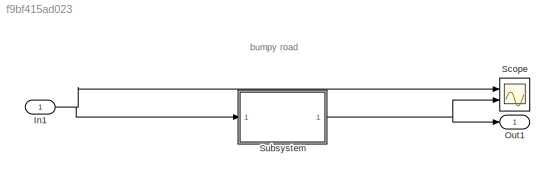
MODEL slx_f9bf415ad023
KIND model
CONFIG AbsTol = auto
CONFIG EnableMultiTasking = off
CONFIG FixedStep = auto
CONFIG MaxStep = auto
CONFIG MinStep = auto
CONFIG RelTol = 1e-3
CONFIG SampleTimeConstraint = Unconstrained
CONFIG SolverName = VariableStepAuto
CONFIG StartTime = 0.0
CONFIG StopTime = 100
WORKSPACE source: mxarray member
WORKSPACE Sig: Simulink.Signal (value not decoded)
WORKSPACE Sig1: Simulink.Signal (value not decoded)
WORKSPACE Ts = 0.01
WORKSPACE b = 100
WORKSPACE k1 = 2000
WORKSPACE k2 = 2000
WORKSPACE m1 = 200
WORKSPACE m2 = 5
WORKSPACE out: Simulink.SimulationOutput (value not decoded)
WORKSPACE stin = [0 0 0 0 0 0 0 0 0 0 0 0 ... (1001 elements, 1001x1)]
WORKSPACE t = [0 0.01 0.02 0.03 0.04 0.05 0.06 0.07 0.08 0.09 0.1 0.11 ... (1001 elements, 1001x1)]
WORKSPACE tout = [0 2 4 4.27243359785 4.5448671957 4.74548384965 4.9461005036 4.97718698558 4.98549942554 4.9938118655 4.9974088391 4.99890512267 ... (559 elements, 559x1)]
WORKSPACE yout = [0 0 0 0 0 0 0 0 0 0 0 0 ... (559 elements, 559x1)]
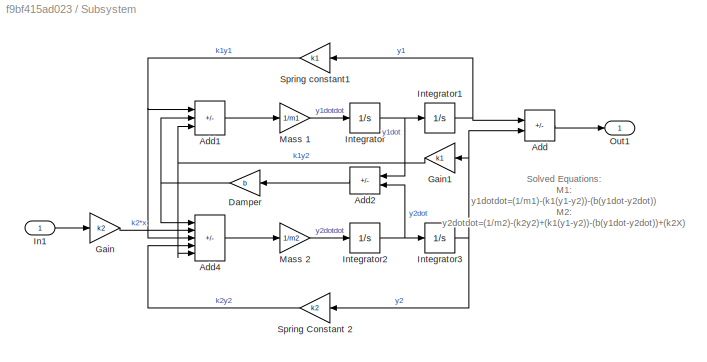
BLOCK [SubSystem]  Subsystem
  Ports = [1, 1]
  RequestExecContextInheritance = off
BLOCK [Gain]  Subsystem/ Damper
  Gain = b
BLOCK [Sum]  Subsystem/Add
  IconShape = rectangular
  Inputs = +-
  Ports = [2, 1]
BLOCK [Sum]  Subsystem/Add1
  IconShape = rectangular
  Inputs = --+
  Ports = [3, 1]
BLOCK [Sum]  Subsystem/Add2
  IconShape = rectangular
  Inputs = +-
  Ports = [2, 1]
BLOCK [Sum]  Subsystem/Add4
  IconShape = rectangular
  Inputs = +++--
  Ports = [5, 1]
BLOCK [Gain]  Subsystem/Gain
  Gain = k2
BLOCK [Gain]  Subsystem/Gain1
  Gain = k1
BLOCK [Inport]  Subsystem/In1
BLOCK [Integrator]  Subsystem/Integrator
  Ports = [1, 1]
BLOCK [Integrator]  Subsystem/Integrator1
  Ports = [1, 1]
BLOCK [Integrator]  Subsystem/Integrator2
  Ports = [1, 1]
BLOCK [Integrator]  Subsystem/Integrator3
  Ports = [1, 1]
BLOCK [Gain]  Subsystem/Mass 1
  Gain = 1/m1
BLOCK [Gain]  Subsystem/Mass 2
  Gain = 1/m2
BLOCK [Outport]  Subsystem/Out1
BLOCK [Gain]  Subsystem/Spring Constant 2
  Gain = k2
BLOCK [Gain]  Subsystem/Spring constant1
  Gain = k1
BLOCK [Inport] In1
BLOCK [Outport] Out1
BLOCK [Scope] Scope
  Floating = off
  NumInputPorts = 2
  Ports = [2]
  ScopeSpecificationString = Simulink.scopes.TimeScopeBlockCfg('CurrentConfiguration', extmgr.ConfigurationSet(extmgr.Configuration('Core','General UI',true),extmgr.Configuration('Core','Source UI',true),extmgr.Configuration('Sources','WiredSimulink',true),extmgr.Configuration('Visuals','Time Domain',true,'SerializedDisplays',{struct('MinYLimReal','-0.625','MaxYLimReal','5.625','YLabelReal','','MinYLimMag','0.00000','MaxYLimM...<+1997ch>
ANNOTATION (root): bumpy road
ANNOTATION  Subsystem: Solved Equations: M1: y1dotdot=(1/m1)-(k1(y1-y2))-(b(y1dot-y2dot)) M2: y2dotdot=(1/m2)-(k2y2)+(k1(y1-y2))-(b(y1dot-y2dot))+(k2X )
NET  Subsystem/ Damper:1 ->  Subsystem/Add1:2,  Subsystem/Add4:1
LINE  Subsystem/Add1:1 ->  Subsystem/Mass 1:1
LINE  Subsystem/Add2:1 ->  Subsystem/ Damper:1
LINE  Subsystem/Add4:1 ->  Subsystem/Mass 2:1
LINE  Subsystem/Add:1 ->  Subsystem/Out1:1
NET  Subsystem/Gain1:1 ->  Subsystem/Add1:3,  Subsystem/Add4:5
LINE  Subsystem/Gain:1 ->  Subsystem/Add4:2
LINE  Subsystem/In1:1 ->  Subsystem/Gain:1
NET  Subsystem/Integrator1:1 ->  Subsystem/Add:1,  Subsystem/Spring constant1:1
NET  Subsystem/Integrator2:1 ->  Subsystem/Add2:2,  Subsystem/Integrator3:1
NET  Subsystem/Integrator3:1 ->  Subsystem/Add:2,  Subsystem/Gain1:1,  Subsystem/Spring Constant 2:1
NET  Subsystem/Integrator:1 ->  Subsystem/Add2:1,  Subsystem/Integrator1:1
LINE  Subsystem/Mass 1:1 ->  Subsystem/Integrator:1
LINE  Subsystem/Mass 2:1 ->  Subsystem/Integrator2:1
LINE  Subsystem/Spring Constant 2:1 ->  Subsystem/Add4:4
NET  Subsystem/Spring constant1:1 ->  Subsystem/Add1:1,  Subsystem/Add4:3
NET  Subsystem:1 -> Out1:1, Scope:2
NET In1:1 ->  Subsystem:1, Scope:1
note: NET lines group one-source signal fan-out (src -> all destinations, sorted); 1:1 wires keep LINE
